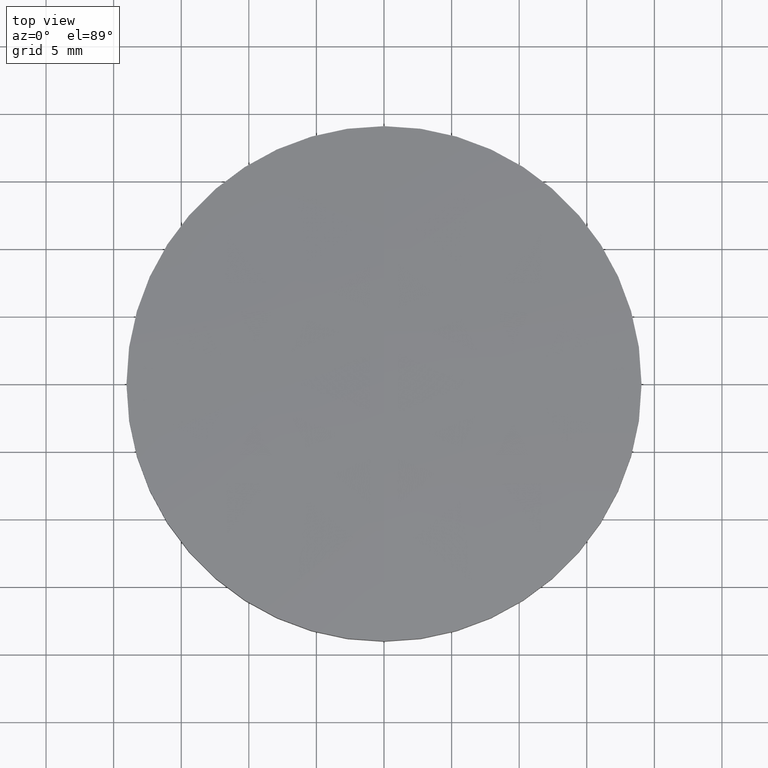
[diagram: clean part render]
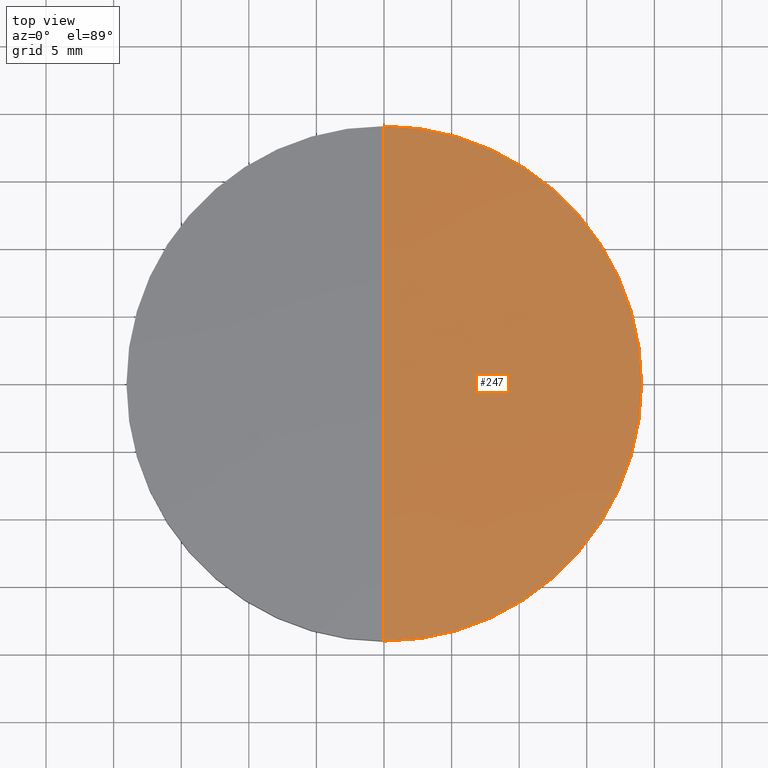
[diagram: same view with one face highlighted and labeled with its STEP entity id]
A machine part, top view. The second image highlights one B-rep face of the part: STEP entity #247.
In plain terms, the highlighted face is a freeform B-spline surface patch.
Its self-contained STEP definition (entity closure, byte-faithful):
#2 = CARTESIAN_POINT ( 'NONE',  ( 19.08036082284170100, 19.27793817985587000, 3.211769511431705700 ) ) ;
#17 = EDGE_CURVE ( 'NONE', #219, #133, #161, .T. ) ;
#24 = FACE_OUTER_BOUND ( 'NONE', #257, .T. ) ;
#27 = CARTESIAN_POINT ( 'NONE',  ( -1.353084311261909500E-013, 19.27793817985587300, 4.098617155132239500 ) ) ;
#33 = ORIENTED_EDGE ( 'NONE', *, *, #17, .F. ) ;
#35 = DIRECTION ( 'NONE',  ( -5.827942386483759700E-018, -2.717192996813919900E-034, -1.000000000000000000 ) ) ;
#37 = CARTESIAN_POINT ( 'NONE',  ( -8.526512829121199700E-014, -5.684341886080800200E-014, -201.5999999999999900 ) ) ;
#40 = CARTESIAN_POINT ( 'NONE',  ( 6.371567481593705100, -19.27793817985600100, 4.098617155132211900 ) ) ;
#50 = CARTESIAN_POINT ( 'NONE',  ( -4.644055895359926400E-015, -8.881784197001250400E-016, 4.119851983224990000 ) ) ;
#54 = CARTESIAN_POINT ( 'NONE',  ( 19.19192373488754900, 6.444724679720213300, 4.409304381977981400 ) ) ;
#56 = CARTESIAN_POINT ( 'NONE',  ( 19.19192373488754200, -6.444724679720344800, 4.409304381977953800 ) ) ;
#58 = CARTESIAN_POINT ( 'NONE',  ( 6.408822050788878700, 6.444724679720217800, 5.301337425818004200 ) ) ;
#60 = DIRECTION ( 'NONE',  ( -5.827942386483759700E-018, -2.717192996813919900E-034, -1.000000000000000000 ) ) ;
#68 = EDGE_CURVE ( 'NONE', #133, #237, #146, .T. ) ;
#77 = CARTESIAN_POINT ( 'NONE',  ( 12.81073263667003000, -6.444724679720340400, 5.003779147387859900 ) ) ;
#78 = CARTESIAN_POINT ( 'NONE',  ( 6.371567481593719300, 19.27793817985587000, 4.098617155132241200 ) ) ;
#96 = CARTESIAN_POINT ( 'NONE',  ( -1.991220114042385400E-013, -19.05000000000009300, 4.119851983224985600 ) ) ;
#101 = DIRECTION ( 'NONE',  ( 1.000000000000000000, 0.0000000000000000000, 0.0000000000000000000 ) ) ;
#113 = DIRECTION ( 'NONE',  ( -1.000000000000000000, 2.813027685172509800E-016, -5.274068804094810300E-016 ) ) ;
#119 = CARTESIAN_POINT ( 'NONE',  ( -1.884043759237312400E-013, 19.05000000000004000, 4.119851983224985600 ) ) ;
#124 = CARTESIAN_POINT ( 'NONE',  ( 19.08036082284168700, -19.27793817985600100, 3.211769511431677800 ) ) ;
#133 = VERTEX_POINT ( 'NONE', #275 ) ;
#142 = CARTESIAN_POINT ( 'NONE',  ( 12.73626367471862900, 19.27793817985587300, 3.802788586996078000 ) ) ;
#145 = CARTESIAN_POINT ( 'NONE',  ( 6.408822050788870700, -6.444724679720337700, 5.301337425817975700 ) ) ;
#146 = CIRCLE ( 'NONE', #187, 19.05000000000000100 ) ;
#151 = CIRCLE ( 'NONE', #221, 206.5999999999999900 ) ;
#156 = AXIS2_PLACEMENT_3D ( 'NONE', #248, #60, #101 ) ;
#161 = CIRCLE ( 'NONE', #156, 19.05000000000000100 ) ;
#162 = DIRECTION ( 'NONE',  ( -2.813027685172511800E-016, -1.000000000000000000, 2.686890185443263700E-016 ) ) ;
#163 = EDGE_CURVE ( 'NONE', #237, #219, #151, .T. ) ;
#172 = CARTESIAN_POINT ( 'NONE',  ( -1.491862189340054100E-013, -19.27793817985599700, 4.098617155132211000 ) ) ;
#187 = AXIS2_PLACEMENT_3D ( 'NONE', #50, #35, #189 ) ;
#189 = DIRECTION ( 'NONE',  ( 1.000000000000000000, 0.0000000000000000000, 0.0000000000000000000 ) ) ;
#210 = ORIENTED_EDGE ( 'NONE', *, *, #68, .F. ) ;
#219 = VERTEX_POINT ( 'NONE', #119 ) ;
#220 = CARTESIAN_POINT ( 'NONE',  ( -1.457167719820518000E-013, -6.444724679720338600, 5.301337425817973100 ) ) ;
#221 = AXIS2_PLACEMENT_3D ( 'NONE', #37, #113, #162 ) ;
#222 = CARTESIAN_POINT ( 'NONE',  ( -1.387778780781445700E-013, 6.444724679720219600, 5.301337425818002400 ) ) ;
#237 = VERTEX_POINT ( 'NONE', #96 ) ;
#242 =( BOUNDED_SURFACE ( )  B_SPLINE_SURFACE ( 3, 3, ( 
 ( #124, #295, #40, #172 ),
 ( #56, #77, #145, #220 ),
 ( #54, #270, #58, #222 ),
 ( #2, #142, #78, #27 ) ),
 .UNSPECIFIED., .F., .F., .F. ) 
 B_SPLINE_SURFACE_WITH_KNOTS ( ( 4, 4 ),
 ( 4, 4 ),
 ( 0.0000000000000000000, 1.000000000000000000 ),
 ( 0.0000000000000000000, 1.000000000000000000 ),
 .UNSPECIFIED. ) 
 GEOMETRIC_REPRESENTATION_ITEM ( )  RATIONAL_B_SPLINE_SURFACE ( (
 ( 1.000000000000000000, 0.9992810467765541600, 0.9992810467765541600, 1.000000000000000000),
 ( 0.9970913751375676300, 0.9963745130793424400, 0.9963745130793424400, 0.9970913751375676300),
 ( 0.9970913751375676300, 0.9963745130793424400, 0.9963745130793424400, 0.9970913751375676300),
 ( 1.000000000000000000, 0.9992810467765541600, 0.9992810467765541600, 1.000000000000000000) ) ) 
 REPRESENTATION_ITEM ( '' )  SURFACE ( )  );
#247 = ADVANCED_FACE ( 'NONE', ( #24 ), #242, .T. ) ;
#248 = CARTESIAN_POINT ( 'NONE',  ( -4.644055895359926400E-015, -8.881784197001250400E-016, 4.119851983224990000 ) ) ;
#257 = EDGE_LOOP ( 'NONE', ( #292, #210, #33 ) ) ;
#270 = CARTESIAN_POINT ( 'NONE',  ( 12.81073263667003700, 6.444724679720215100, 5.003779147387887400 ) ) ;
#275 = CARTESIAN_POINT ( 'NONE',  ( 19.04999999999999700, -8.881784197001250400E-016, 4.119851983224990000 ) ) ;
#292 = ORIENTED_EDGE ( 'NONE', *, *, #163, .F. ) ;
#295 = CARTESIAN_POINT ( 'NONE',  ( 12.73626367471861600, -19.27793817985599700, 3.802788586996050500 ) ) ;